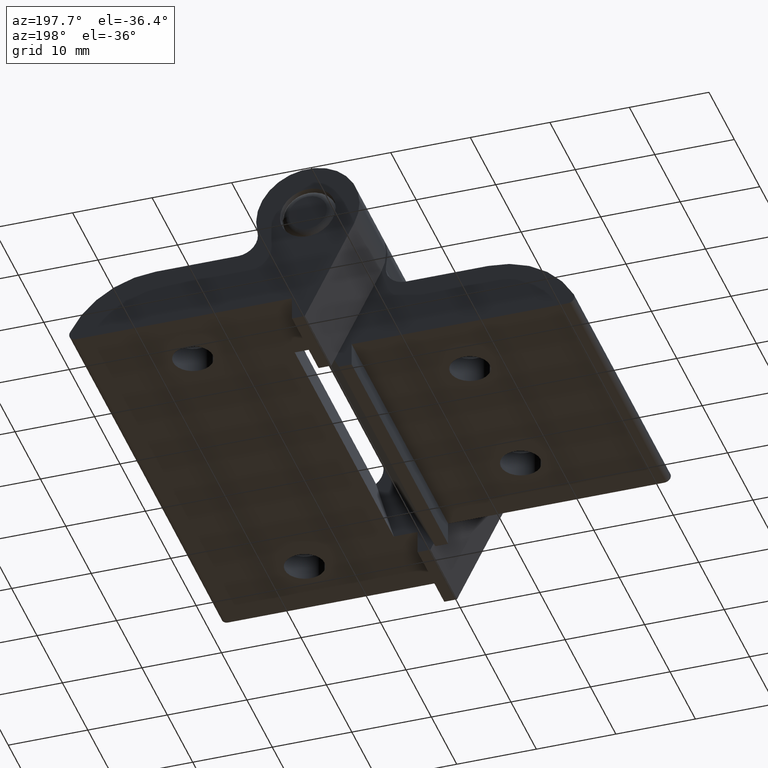
[diagram: clean part render]
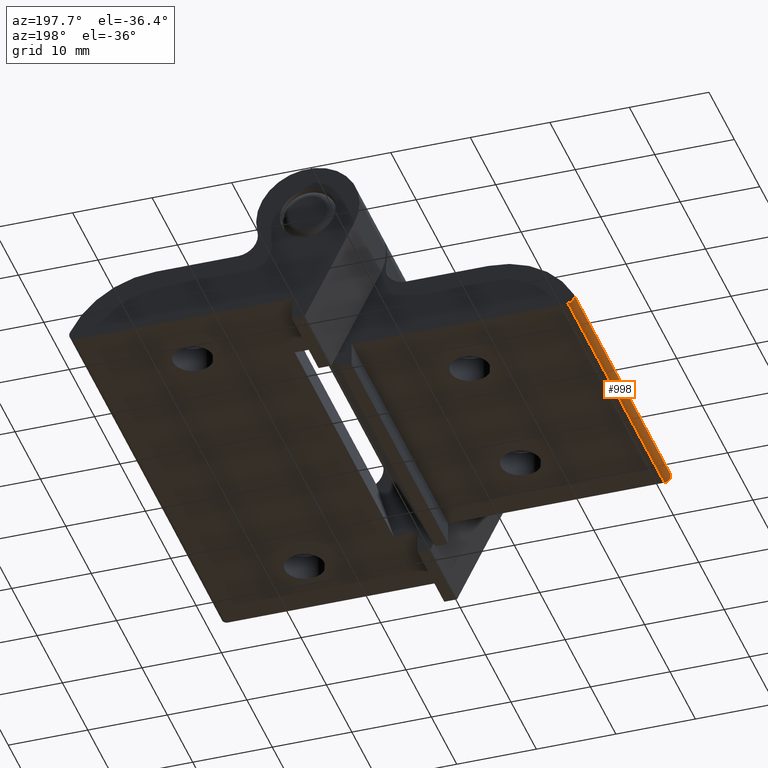
[diagram: same view with one face highlighted and labeled with its STEP entity id]
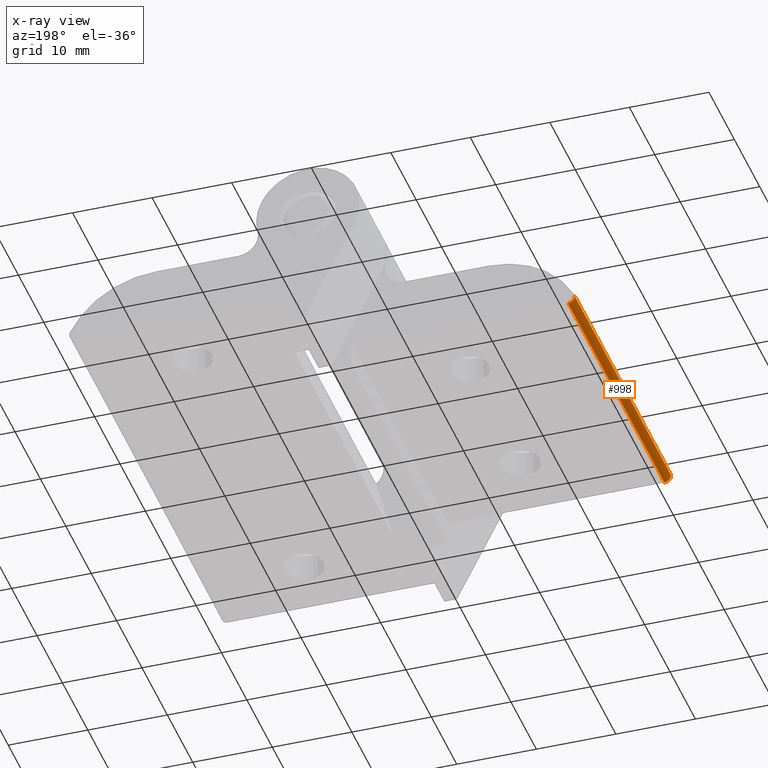
[diagram: x-ray of the same camera — body ghosted, the highlighted face saturated]
A machine part, auxiliary view. The second image highlights one B-rep face of the part: STEP entity #998.
The next image is the same camera in x-ray: the body ghosted, the highlighted face saturated — about 0% of this face is hidden behind the body in this view.
In plain terms, the highlighted face is a freeform B-spline surface patch.
Its self-contained STEP definition (entity closure, byte-faithful):
#38=B_SPLINE_SURFACE_WITH_KNOTS('',3,3,((#1815,#1816,#1817,#1818),(#1819,
#1820,#1821,#1822),(#1823,#1824,#1825,#1826),(#1827,#1828,#1829,#1830),
(#1831,#1832,#1833,#1834),(#1835,#1836,#1837,#1838)),.UNSPECIFIED.,.F.,
 .F.,.F.,(4,1,1,4),(4,4),(0.,0.285714285714286,0.571428571428571,1.),(0.,
3.8),.UNSPECIFIED.);
#81=B_SPLINE_CURVE_WITH_KNOTS('',3,(#1841,#1842,#1843,#1844,#1845,#1846),
 .UNSPECIFIED.,.F.,.F.,(4,1,1,4),(0.22820234633416,0.285714285714286,0.571428571428571,
1.),.UNSPECIFIED.);
#82=B_SPLINE_CURVE_WITH_KNOTS('',3,(#1848,#1849,#1850,#1851),
 .UNSPECIFIED.,.F.,.F.,(4,4),(-3.8,0.),.UNSPECIFIED.);
#83=B_SPLINE_CURVE_WITH_KNOTS('',3,(#1853,#1854,#1855,#1856,#1857,#1858),
 .UNSPECIFIED.,.F.,.F.,(4,1,1,4),(-1.,-0.571428571428571,-0.285714285714286,
-0.228202346334165),.UNSPECIFIED.);
#84=B_SPLINE_CURVE_WITH_KNOTS('',3,(#1860,#1861,#1862,#1863),
 .UNSPECIFIED.,.F.,.F.,(4,4),(-0.228202346334165,0.),.UNSPECIFIED.);
#85=B_SPLINE_CURVE_WITH_KNOTS('',3,(#1865,#1866,#1867,#1868),
 .UNSPECIFIED.,.F.,.F.,(4,4),(0.,3.8),.UNSPECIFIED.);
#86=B_SPLINE_CURVE_WITH_KNOTS('',3,(#1869,#1870,#1871,#1872),
 .UNSPECIFIED.,.F.,.F.,(4,4),(0.,0.22820234633416),.UNSPECIFIED.);
#139=FACE_OUTER_BOUND('',#194,.T.);
#194=EDGE_LOOP('',(#872,#873,#874,#875,#876,#877));
#492=VERTEX_POINT('',#1839);
#493=VERTEX_POINT('',#1840);
#494=VERTEX_POINT('',#1847);
#495=VERTEX_POINT('',#1852);
#496=VERTEX_POINT('',#1859);
#497=VERTEX_POINT('',#1864);
#627=EDGE_CURVE('',#492,#493,#81,.T.);
#628=EDGE_CURVE('',#493,#494,#82,.T.);
#629=EDGE_CURVE('',#494,#495,#83,.T.);
#630=EDGE_CURVE('',#495,#496,#84,.T.);
#631=EDGE_CURVE('',#496,#497,#85,.T.);
#632=EDGE_CURVE('',#497,#492,#86,.T.);
#872=ORIENTED_EDGE('',*,*,#627,.T.);
#873=ORIENTED_EDGE('',*,*,#628,.T.);
#874=ORIENTED_EDGE('',*,*,#629,.T.);
#875=ORIENTED_EDGE('',*,*,#630,.T.);
#876=ORIENTED_EDGE('',*,*,#631,.T.);
#877=ORIENTED_EDGE('',*,*,#632,.T.);
#998=ADVANCED_FACE('',(#139),#38,.F.);
#1815=CARTESIAN_POINT('Ctrl Pts',(29.9140261061395,19.,-11.1248543994776));
#1816=CARTESIAN_POINT('Ctrl Pts',(29.9140261061395,6.33333333333334,-11.1248543994776));
#1817=CARTESIAN_POINT('Ctrl Pts',(29.9140261061395,-6.33333333333334,-11.1248543994776));
#1818=CARTESIAN_POINT('Ctrl Pts',(29.9140261061395,-19.,-11.1248543994776));
#1819=CARTESIAN_POINT('Ctrl Pts',(29.9844922625149,19.,-11.2655053740222));
#1820=CARTESIAN_POINT('Ctrl Pts',(29.9844922625149,6.33333333333334,-11.2655053740222));
#1821=CARTESIAN_POINT('Ctrl Pts',(29.9844922625149,-6.33333333333334,-11.2655053740222));
#1822=CARTESIAN_POINT('Ctrl Pts',(29.9844922625149,-19.,-11.2655053740222));
#1823=CARTESIAN_POINT('Ctrl Pts',(30.0407793273985,19.,-11.5879475011584));
#1824=CARTESIAN_POINT('Ctrl Pts',(30.0407793273985,6.33333333333333,-11.5879475011584));
#1825=CARTESIAN_POINT('Ctrl Pts',(30.0407793273985,-6.33333333333333,-11.5879475011584));
#1826=CARTESIAN_POINT('Ctrl Pts',(30.0407793273985,-19.,-11.5879475011584));
#1827=CARTESIAN_POINT('Ctrl Pts',(29.8136087726109,19.,-12.1167175626109));
#1828=CARTESIAN_POINT('Ctrl Pts',(29.8136087726109,6.33333333333335,-12.1167175626109));
#1829=CARTESIAN_POINT('Ctrl Pts',(29.8136087726109,-6.33333333333335,-12.1167175626109));
#1830=CARTESIAN_POINT('Ctrl Pts',(29.8136087726109,-19.,-12.1167175626109));
#1831=CARTESIAN_POINT('Ctrl Pts',(29.4243687454637,19.,-12.3));
#1832=CARTESIAN_POINT('Ctrl Pts',(29.4243687454637,6.33333333333334,-12.3));
#1833=CARTESIAN_POINT('Ctrl Pts',(29.4243687454637,-6.33333333333334,-12.3));
#1834=CARTESIAN_POINT('Ctrl Pts',(29.4243687454637,-19.,-12.3));
#1835=CARTESIAN_POINT('Ctrl Pts',(29.1883954511527,19.,-12.3));
#1836=CARTESIAN_POINT('Ctrl Pts',(29.1883954511527,6.33333333333334,-12.3));
#1837=CARTESIAN_POINT('Ctrl Pts',(29.1883954511527,-6.33333333333334,-12.3));
#1838=CARTESIAN_POINT('Ctrl Pts',(29.1883954511527,-19.,-12.3));
#1839=CARTESIAN_POINT('',(30.,-19.,-11.4883954511528));
#1840=CARTESIAN_POINT('',(29.1883954511527,-19.,-12.3));
#1841=CARTESIAN_POINT('Ctrl Pts',(29.9997335155533,-19.,-11.4881735629194));
#1842=CARTESIAN_POINT('Ctrl Pts',(29.999769476235,-19.,-11.5198069744592));
#1843=CARTESIAN_POINT('Ctrl Pts',(29.9889384737779,-19.,-11.7086140698532));
#1844=CARTESIAN_POINT('Ctrl Pts',(29.8136087726109,-19.,-12.1167175626109));
#1845=CARTESIAN_POINT('Ctrl Pts',(29.4243687454637,-19.,-12.3));
#1846=CARTESIAN_POINT('Ctrl Pts',(29.1883954511527,-19.,-12.3));
#1847=CARTESIAN_POINT('',(29.1883954511527,19.,-12.3));
#1848=CARTESIAN_POINT('Ctrl Pts',(29.1883954511527,-19.,-12.3));
#1849=CARTESIAN_POINT('Ctrl Pts',(29.1883954511527,-6.33333333333334,-12.3));
#1850=CARTESIAN_POINT('Ctrl Pts',(29.1883954511527,6.33333333333334,-12.3));
#1851=CARTESIAN_POINT('Ctrl Pts',(29.1883954511527,19.,-12.3));
#1852=CARTESIAN_POINT('',(30.,19.,-11.4883954511528));
#1853=CARTESIAN_POINT('Ctrl Pts',(29.1883954511527,19.,-12.3));
#1854=CARTESIAN_POINT('Ctrl Pts',(29.4243687454637,19.,-12.3));
#1855=CARTESIAN_POINT('Ctrl Pts',(29.8136087726109,19.,-12.1167175626109));
#1856=CARTESIAN_POINT('Ctrl Pts',(29.9889384737779,19.,-11.7086140698532));
#1857=CARTESIAN_POINT('Ctrl Pts',(29.999769476235,19.,-11.5198069744592));
#1858=CARTESIAN_POINT('Ctrl Pts',(29.9997335155533,19.,-11.4881735629194));
#1859=CARTESIAN_POINT('',(29.9140261061395,19.,-11.1248543994776));
#1860=CARTESIAN_POINT('Ctrl Pts',(29.9997335155533,19.,-11.4881735629194));
#1861=CARTESIAN_POINT('Ctrl Pts',(29.9995908267126,19.,-11.3626549521101));
#1862=CARTESIAN_POINT('Ctrl Pts',(29.9703080039166,19.,-11.237193487896));
#1863=CARTESIAN_POINT('Ctrl Pts',(29.9140261061395,19.,-11.1248543994776));
#1864=CARTESIAN_POINT('',(29.9140261061395,-19.,-11.1248543994776));
#1865=CARTESIAN_POINT('Ctrl Pts',(29.9140261061395,19.,-11.1248543994776));
#1866=CARTESIAN_POINT('Ctrl Pts',(29.9140261061395,6.33333333333334,-11.1248543994776));
#1867=CARTESIAN_POINT('Ctrl Pts',(29.9140261061395,-6.33333333333334,-11.1248543994776));
#1868=CARTESIAN_POINT('Ctrl Pts',(29.9140261061395,-19.,-11.1248543994776));
#1869=CARTESIAN_POINT('Ctrl Pts',(29.9140261061395,-19.,-11.1248543994776));
#1870=CARTESIAN_POINT('Ctrl Pts',(29.9703080039166,-19.,-11.237193487896));
#1871=CARTESIAN_POINT('Ctrl Pts',(29.9995908267126,-19.,-11.3626549521101));
#1872=CARTESIAN_POINT('Ctrl Pts',(29.9997335155533,-19.,-11.4881735629194));